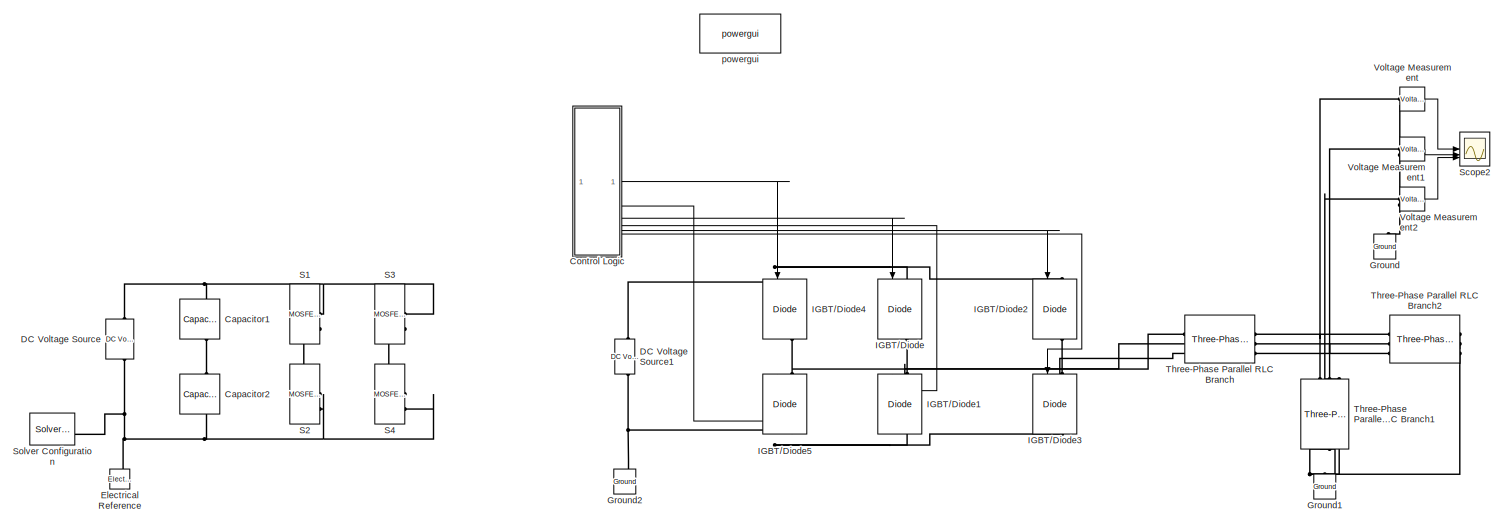
[diagram: root canvas - part 1/2, full width, top band]
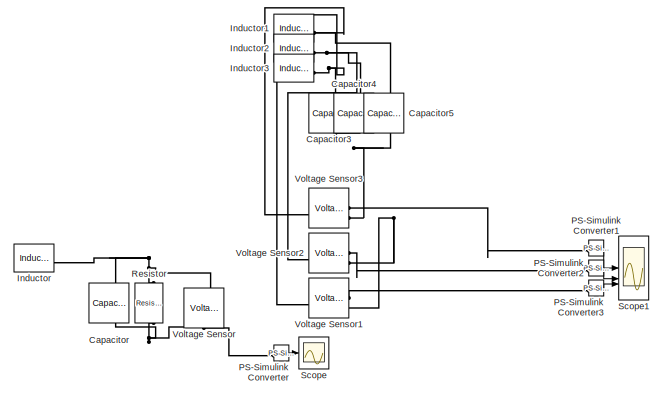
[diagram: root canvas - part 2/2, bottom center region]
MODEL slx_5fde8659187a
KIND model
CONFIG AbsTol = auto
CONFIG EnableMultiTasking = off
CONFIG FixedStep = 1e-7
CONFIG MaxStep = 1e-5
CONFIG MinStep = auto
CONFIG RelTol = 1e-3
CONFIG SampleTimeConstraint = Unconstrained
CONFIG SolverName = ode3
CONFIG StartTime = 0
CONFIG StopTime = 1
WORKSPACE source: mxarray member
WORKSPACE Amplitude = 0.9
WORKSPACE Tbase = 870
BLOCK [Reference] Capacitor  REF=fl_lib/Electrical/Electrical Elements/Capacitor
  Commented = on
  NameLocation = left
  SourceBlock = fl_lib/Electrical/Electrical Elements/Capacitor
  SourceType = Capacitor
BLOCK [Reference] Capacitor1  REF=ee_lib/Passive/Capacitor
  Commented = on
  NameLocation = left
  SourceBlock = ee_lib/Passive/Capacitor
  SourceType = Capacitor
BLOCK [Reference] Capacitor2  REF=ee_lib/Passive/Capacitor
  Commented = on
  NameLocation = left
  SourceBlock = ee_lib/Passive/Capacitor
  SourceType = Capacitor
BLOCK [Reference] Capacitor3  REF=fl_lib/Electrical/Electrical Elements/Capacitor
  Commented = on
  NameLocation = left
  SourceBlock = fl_lib/Electrical/Electrical Elements/Capacitor
  SourceType = Capacitor
BLOCK [Reference] Capacitor4  REF=fl_lib/Electrical/Electrical Elements/Capacitor
  Commented = on
  NameLocation = left
  SourceBlock = fl_lib/Electrical/Electrical Elements/Capacitor
  SourceType = Capacitor
BLOCK [Reference] Capacitor5  REF=fl_lib/Electrical/Electrical Elements/Capacitor
  Commented = on
  NameLocation = left
  SourceBlock = fl_lib/Electrical/Electrical Elements/Capacitor
  SourceType = Capacitor
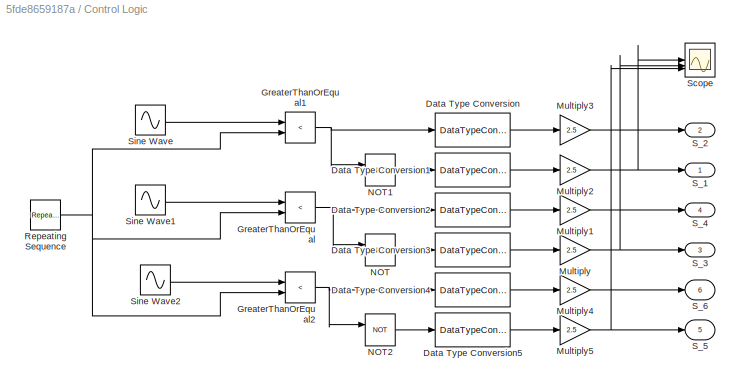
BLOCK [SubSystem] Control Logic
BLOCK [DataTypeConversion] Control Logic/Data Type Conversion
  OutDataTypeStr = double
  RndMeth = Floor
  SaturateOnIntegerOverflow = off
BLOCK [DataTypeConversion] Control Logic/Data Type Conversion1
  OutDataTypeStr = double
  RndMeth = Floor
  SaturateOnIntegerOverflow = off
BLOCK [DataTypeConversion] Control Logic/Data Type Conversion2
  OutDataTypeStr = double
  RndMeth = Floor
  SaturateOnIntegerOverflow = off
BLOCK [DataTypeConversion] Control Logic/Data Type Conversion3
  OutDataTypeStr = double
  RndMeth = Floor
  SaturateOnIntegerOverflow = off
BLOCK [DataTypeConversion] Control Logic/Data Type Conversion4
  OutDataTypeStr = double
  RndMeth = Floor
  SaturateOnIntegerOverflow = off
BLOCK [DataTypeConversion] Control Logic/Data Type Conversion5
  OutDataTypeStr = double
  RndMeth = Floor
  SaturateOnIntegerOverflow = off
BLOCK [RelationalOperator] Control Logic/GreaterThanOrEqual
  InputSameDT = off
  Operator = <
  OutDataTypeStr = boolean
  RndMeth = Simplest
BLOCK [RelationalOperator] Control Logic/GreaterThanOrEqual1
  InputSameDT = off
  Operator = <
  OutDataTypeStr = boolean
  RndMeth = Simplest
BLOCK [RelationalOperator] Control Logic/GreaterThanOrEqual2
  InputSameDT = off
  Operator = <
  OutDataTypeStr = boolean
  RndMeth = Simplest
BLOCK [Gain] Control Logic/Multiply
  Gain = 2.5
BLOCK [Gain] Control Logic/Multiply1
  Gain = 2.5
BLOCK [Gain] Control Logic/Multiply2
  Gain = 2.5
BLOCK [Gain] Control Logic/Multiply3
  Gain = 2.5
BLOCK [Gain] Control Logic/Multiply4
  Gain = 2.5
BLOCK [Gain] Control Logic/Multiply5
  Gain = 2.5
BLOCK [Logic] Control Logic/NOT
  AllPortsSameDT = off
  IconShape = distinctive
  Operator = NOT
  OutDataTypeStr = boolean
BLOCK [Logic] Control Logic/NOT1
  AllPortsSameDT = off
  IconShape = distinctive
  Operator = NOT
  OutDataTypeStr = boolean
BLOCK [Logic] Control Logic/NOT2
  AllPortsSameDT = off
  IconShape = distinctive
  Operator = NOT
  OutDataTypeStr = boolean
BLOCK [Reference] Control Logic/Repeating Sequence  REF=simulink/Sources/Repeating
Sequence
  SourceBlock = simulink/Sources/Repeating\nSequence
  SourceType = Repeating table
BLOCK [Outport] Control Logic/S_1
BLOCK [Outport] Control Logic/S_2
  Port = 2
BLOCK [Outport] Control Logic/S_3
  IconDisplay = Signal name
  Port = 3
BLOCK [Outport] Control Logic/S_4
  IconDisplay = Signal name
  Port = 4
BLOCK [Outport] Control Logic/S_5
  IconDisplay = Signal name
  Port = 5
BLOCK [Outport] Control Logic/S_6
  IconDisplay = Signal name
  Port = 6
BLOCK [Scope] Control Logic/Scope
  Floating = off
  NumInputPorts = 4
  ScopeSpecificationString = Simulink.scopes.TimeScopeBlockCfg('CurrentConfiguration', extmgr.ConfigurationSet(extmgr.Configuration('Core','General UI',true),extmgr.Configuration('Core','Source UI',true),extmgr.Configuration('Sources','WiredSimulink',true,'DataLoggingVariableName','ScopeData1'),extmgr.Configuration('Visuals','Time Domain',true,'SerializedDisplays',{struct('MinYLimReal','-0.3125','MaxYLimReal','2.56479','YLabe...<+3829ch>
BLOCK [Sin] Control Logic/Sine Wave
  Amplitude = Amplitude
  Frequency = 2*pi*60
  SampleTime = 0
BLOCK [Sin] Control Logic/Sine Wave1
  Amplitude = Amplitude
  Frequency = 2*pi*60
  Phase = 2*pi/3
  SampleTime = 0
BLOCK [Sin] Control Logic/Sine Wave2
  Amplitude = Amplitude
  Frequency = 2*pi*60
  Phase = 4*pi/3
  SampleTime = 0
BLOCK [Reference] DC Voltage Source  REF=fl_lib/Electrical/Electrical Sources/DC Voltage Source
  Commented = on
  NameLocation = right
  SourceBlock = fl_lib/Electrical/Electrical Sources/DC Voltage Source
  SourceType = DC Voltage Source
BLOCK [Reference] DC Voltage Source1  REF=spsDCVoltageSourceLib/DC Voltage Source
  LibrarySourceBlock = sps_lib/Sources/DC Voltage Source
  SourceBlock = spsDCVoltageSourceLib/DC Voltage Source
  SourceType = DC Voltage Source
BLOCK [Reference] Electrical Reference  REF=fl_lib/Electrical/Electrical Elements/Electrical Reference
  Commented = on
  NameLocation = right
  SourceBlock = fl_lib/Electrical/Electrical Elements/Electrical Reference
  SourceType = Electrical Reference
BLOCK [Reference] Ground  REF=spsGroundLib/Ground
  LibrarySourceBlock = sps_lib/Utilities/Ground
  NameLocation = right
  SourceBlock = spsGroundLib/Ground
  SourceType = Ground
BLOCK [Reference] Ground1  REF=spsGroundLib/Ground
  LibrarySourceBlock = sps_lib/Utilities/Ground
  NameLocation = right
  SourceBlock = spsGroundLib/Ground
  SourceType = Ground
BLOCK [Reference] Ground2  REF=spsGroundLib/Ground
  LibrarySourceBlock = sps_lib/Utilities/Ground
  NameLocation = right
  SourceBlock = spsGroundLib/Ground
  SourceType = Ground
BLOCK [Reference] IGBT//Diode  REF=spsIGBTDiodeLib/IGBT//Diode
  NameLocation = left
  SourceBlock = spsIGBTDiodeLib/IGBT//Diode
  SourceType = IGBT/Diode
BLOCK [Reference] IGBT//Diode1  REF=spsIGBTDiodeLib/IGBT//Diode
  NameLocation = left
  SourceBlock = spsIGBTDiodeLib/IGBT//Diode
  SourceType = IGBT/Diode
BLOCK [Reference] IGBT//Diode2  REF=spsIGBTDiodeLib/IGBT//Diode
  NameLocation = left
  SourceBlock = spsIGBTDiodeLib/IGBT//Diode
  SourceType = IGBT/Diode
BLOCK [Reference] IGBT//Diode3  REF=spsIGBTDiodeLib/IGBT//Diode
  NameLocation = left
  SourceBlock = spsIGBTDiodeLib/IGBT//Diode
  SourceType = IGBT/Diode
BLOCK [Reference] IGBT//Diode4  REF=spsIGBTDiodeLib/IGBT//Diode
  NameLocation = left
  SourceBlock = spsIGBTDiodeLib/IGBT//Diode
  SourceType = IGBT/Diode
BLOCK [Reference] IGBT//Diode5  REF=spsIGBTDiodeLib/IGBT//Diode
  NameLocation = left
  SourceBlock = spsIGBTDiodeLib/IGBT//Diode
  SourceType = IGBT/Diode
BLOCK [Reference] Inductor  REF=fl_lib/Electrical/Electrical Elements/Inductor
  Commented = on
  SourceBlock = fl_lib/Electrical/Electrical Elements/Inductor
  SourceType = Inductor
BLOCK [Reference] Inductor1  REF=fl_lib/Electrical/Electrical Elements/Inductor
  Commented = on
  SourceBlock = fl_lib/Electrical/Electrical Elements/Inductor
  SourceType = Inductor
BLOCK [Reference] Inductor2  REF=fl_lib/Electrical/Electrical Elements/Inductor
  Commented = on
  SourceBlock = fl_lib/Electrical/Electrical Elements/Inductor
  SourceType = Inductor
BLOCK [Reference] Inductor3  REF=fl_lib/Electrical/Electrical Elements/Inductor
  Commented = on
  SourceBlock = fl_lib/Electrical/Electrical Elements/Inductor
  SourceType = Inductor
BLOCK [Reference] PS-Simulink Converter  REF=nesl_utility/PS-Simulink
Converter
  Commented = on
  SourceBlock = nesl_utility/PS-Simulink\nConverter
  SourceType = PS-Simulink\nConverter
BLOCK [Reference] PS-Simulink Converter1  REF=nesl_utility/PS-Simulink
Converter
  Commented = on
  SourceBlock = nesl_utility/PS-Simulink\nConverter
  SourceType = PS-Simulink\nConverter
BLOCK [Reference] PS-Simulink Converter2  REF=nesl_utility/PS-Simulink
Converter
  Commented = on
  SourceBlock = nesl_utility/PS-Simulink\nConverter
  SourceType = PS-Simulink\nConverter
BLOCK [Reference] PS-Simulink Converter3  REF=nesl_utility/PS-Simulink
Converter
  Commented = on
  SourceBlock = nesl_utility/PS-Simulink\nConverter
  SourceType = PS-Simulink\nConverter
BLOCK [Reference] Resistor  REF=fl_lib/Electrical/Electrical Elements/Resistor
  Commented = on
  NameLocation = left
  SourceBlock = fl_lib/Electrical/Electrical Elements/Resistor
  SourceType = Resistor
BLOCK [Reference] S1  REF=ee_lib/Semiconductors &
Converters/MOSFET
(Ideal,
Switching)
  Commented = on
  SourceBlock = ee_lib/Semiconductors &\nConverters/MOSFET\n(Ideal,\nSwitching)
  SourceType = MOSFET\n(Ideal,\nSwitching)
BLOCK [Reference] S2  REF=ee_lib/Semiconductors &
Converters/MOSFET
(Ideal,
Switching)
  Commented = on
  SourceBlock = ee_lib/Semiconductors &\nConverters/MOSFET\n(Ideal,\nSwitching)
  SourceType = MOSFET\n(Ideal,\nSwitching)
BLOCK [Reference] S3  REF=ee_lib/Semiconductors &
Converters/MOSFET
(Ideal,
Switching)
  Commented = on
  SourceBlock = ee_lib/Semiconductors &\nConverters/MOSFET\n(Ideal,\nSwitching)
  SourceType = MOSFET\n(Ideal,\nSwitching)
BLOCK [Reference] S4  REF=ee_lib/Semiconductors &
Converters/MOSFET
(Ideal,
Switching)
  Commented = on
  SourceBlock = ee_lib/Semiconductors &\nConverters/MOSFET\n(Ideal,\nSwitching)
  SourceType = MOSFET\n(Ideal,\nSwitching)
BLOCK [Scope] Scope
  Commented = on
  Floating = off
  NumInputPorts = 1
  ScopeSpecificationString = Simulink.scopes.TimeScopeBlockCfg('CurrentConfiguration', extmgr.ConfigurationSet(extmgr.Configuration('Core','General UI',true),extmgr.Configuration('Core','Source UI',true),extmgr.Configuration('Sources','WiredSimulink',true),extmgr.Configuration('Visuals','Time Domain',true,'SerializedDisplays',{struct('MinYLimReal','-0.03392','MaxYLimReal','0.03393','YLabelReal','','MinYLimMag','0.00000','MaxY...<+1477ch>
BLOCK [Scope] Scope1
  Commented = on
  Floating = off
  NumInputPorts = 3
  ScopeSpecificationString = Simulink.scopes.TimeScopeBlockCfg('CurrentConfiguration', extmgr.ConfigurationSet(extmgr.Configuration('Core','General UI',true),extmgr.Configuration('Core','Source UI',true),extmgr.Configuration('Sources','WiredSimulink',true,'DataLoggingVariableName','ScopeData2'),extmgr.Configuration('Visuals','Time Domain',true,'SerializedDisplays',{struct('MinYLimReal','-0.39409','MaxYLimReal','0.38595','YLab...<+1592ch>
BLOCK [Scope] Scope2
  Floating = off
  NumInputPorts = 3
  ScopeSpecificationString = Simulink.scopes.TimeScopeBlockCfg('CurrentConfiguration', extmgr.ConfigurationSet(extmgr.Configuration('Core','General UI',true),extmgr.Configuration('Core','Source UI',true),extmgr.Configuration('Sources','WiredSimulink',true,'DataLoggingVariableName','ScopeData1'),extmgr.Configuration('Visuals','Time Domain',true,'SerializedDisplays',{struct('MinYLimReal','-20.83099','MaxYLimReal','116.87787','Y...<+3219ch>
BLOCK [Reference] Solver Configuration  REF=nesl_utility/Solver
Configuration
  Commented = on
  SourceBlock = nesl_utility/Solver\nConfiguration
  SourceType = Solver\nConfiguration
BLOCK [Reference] Three-Phase Parallel RLC Branch  REF=spsThreePhaseParallelRLCBranchLib/Three-Phase
Parallel RLC Branch
  AttributesFormatString = \n
  LibrarySourceBlock = sps_lib/Passives/Three-Phase\nParallel RLC Branch
  SourceBlock = spsThreePhaseParallelRLCBranchLib/Three-Phase\nParallel RLC Branch
  SourceType = Three-Phase Parallel RLC Branch
BLOCK [Reference] Three-Phase Parallel RLC Branch1  REF=spsThreePhaseParallelRLCBranchLib/Three-Phase
Parallel RLC Branch
  AttributesFormatString = \n
  LibrarySourceBlock = sps_lib/Passives/Three-Phase\nParallel RLC Branch
  NameLocation = left
  SourceBlock = spsThreePhaseParallelRLCBranchLib/Three-Phase\nParallel RLC Branch
  SourceType = Three-Phase Parallel RLC Branch
BLOCK [Reference] Three-Phase Parallel RLC Branch2  REF=spsThreePhaseParallelRLCBranchLib/Three-Phase
Parallel RLC Branch
  AttributesFormatString = \n
  LibrarySourceBlock = sps_lib/Passives/Three-Phase\nParallel RLC Branch
  SourceBlock = spsThreePhaseParallelRLCBranchLib/Three-Phase\nParallel RLC Branch
  SourceType = Three-Phase Parallel RLC Branch
BLOCK [Reference] Voltage Measurement  REF=spsVoltageMeasurementLib/Voltage Measurement
  LibrarySourceBlock = sps_lib/Sensors and Measurements/Voltage Measurement
  SourceBlock = spsVoltageMeasurementLib/Voltage Measurement
  SourceType = Voltage Measurement
  UserDataPersistent = on
BLOCK [Reference] Voltage Measurement1  REF=spsVoltageMeasurementLib/Voltage Measurement
  LibrarySourceBlock = sps_lib/Sensors and Measurements/Voltage Measurement
  SourceBlock = spsVoltageMeasurementLib/Voltage Measurement
  SourceType = Voltage Measurement
  UserDataPersistent = on
BLOCK [Reference] Voltage Measurement2  REF=spsVoltageMeasurementLib/Voltage Measurement
  LibrarySourceBlock = sps_lib/Sensors and Measurements/Voltage Measurement
  SourceBlock = spsVoltageMeasurementLib/Voltage Measurement
  SourceType = Voltage Measurement
  UserDataPersistent = on
BLOCK [Reference] Voltage Sensor  REF=fl_lib/Electrical/Electrical Sensors/Voltage Sensor
  Commented = on
  NameLocation = right
  SourceBlock = fl_lib/Electrical/Electrical Sensors/Voltage Sensor
  SourceType = Voltage Sensor
BLOCK [Reference] Voltage Sensor1  REF=fl_lib/Electrical/Electrical Sensors/Voltage Sensor
  Commented = on
  NameLocation = top
  SourceBlock = fl_lib/Electrical/Electrical Sensors/Voltage Sensor
  SourceType = Voltage Sensor
BLOCK [Reference] Voltage Sensor2  REF=fl_lib/Electrical/Electrical Sensors/Voltage Sensor
  Commented = on
  NameLocation = top
  SourceBlock = fl_lib/Electrical/Electrical Sensors/Voltage Sensor
  SourceType = Voltage Sensor
BLOCK [Reference] Voltage Sensor3  REF=fl_lib/Electrical/Electrical Sensors/Voltage Sensor
  Commented = on
  NameLocation = top
  SourceBlock = fl_lib/Electrical/Electrical Sensors/Voltage Sensor
  SourceType = Voltage Sensor
BLOCK [Reference] powergui  REF=sps_lib/powergui
  LibrarySourceBlock = sps_lib/powergui
  Priority = 1
  SourceBlock = sps_lib/powergui
  SourceType = PSB option menu block
LINE Control Logic/Data Type Conversion1:1 -> Control Logic/Multiply2:1
LINE Control Logic/Data Type Conversion2:1 -> Control Logic/Multiply1:1
LINE Control Logic/Data Type Conversion3:1 -> Control Logic/Multiply:1
LINE Control Logic/Data Type Conversion4:1 -> Control Logic/Multiply4:1
LINE Control Logic/Data Type Conversion5:1 -> Control Logic/Multiply5:1
LINE Control Logic/Data Type Conversion:1 -> Control Logic/Multiply3:1
NET Control Logic/GreaterThanOrEqual1:1 -> Control Logic/Data Type Conversion:1, Control Logic/NOT1:1
NET Control Logic/GreaterThanOrEqual2:1 -> Control Logic/Data Type Conversion4:1, Control Logic/NOT2:1
NET Control Logic/GreaterThanOrEqual:1 -> Control Logic/Data Type Conversion2:1, Control Logic/NOT:1
LINE Control Logic/Multiply1:1 -> Control Logic/S_4:1
NET Control Logic/Multiply2:1 -> Control Logic/S_1:1, Control Logic/Scope:1
LINE Control Logic/Multiply3:1 -> Control Logic/S_2:1
LINE Control Logic/Multiply4:1 -> Control Logic/S_6:1
NET Control Logic/Multiply5:1 -> Control Logic/S_5:1, Control Logic/Scope:3
NET Control Logic/Multiply:1 -> Control Logic/S_3:1, Control Logic/Scope:2
LINE Control Logic/NOT1:1 -> Control Logic/Data Type Conversion1:1
LINE Control Logic/NOT2:1 -> Control Logic/Data Type Conversion5:1
LINE Control Logic/NOT:1 -> Control Logic/Data Type Conversion3:1
NET Control Logic/Repeating Sequence:1 -> Control Logic/GreaterThanOrEqual1:2, Control Logic/GreaterThanOrEqual2:2, Control Logic/GreaterThanOrEqual:2
LINE Control Logic/Sine Wave1:1 -> Control Logic/GreaterThanOrEqual:1
LINE Control Logic/Sine Wave2:1 -> Control Logic/GreaterThanOrEqual2:1
LINE Control Logic/Sine Wave:1 -> Control Logic/GreaterThanOrEqual1:1
LINE Control Logic:1 -> IGBT//Diode4:1
LINE Control Logic:2 -> IGBT//Diode5:1
LINE Control Logic:3 -> IGBT//Diode:1
LINE Control Logic:4 -> IGBT//Diode1:1
LINE Control Logic:5 -> IGBT//Diode2:1
LINE Control Logic:6 -> IGBT//Diode3:1
LINE PS-Simulink Converter1:1 -> Scope1:1
LINE PS-Simulink Converter2:1 -> Scope1:2
LINE PS-Simulink Converter3:1 -> Scope1:3
LINE PS-Simulink Converter:1 -> Scope:1
LINE Voltage Measurement1:1 -> Scope2:2
LINE Voltage Measurement2:1 -> Scope2:3
LINE Voltage Measurement:1 -> Scope2:1
PNET net1: Capacitor1:LConn1 -- DC Voltage Source:LConn1 -- S1:RConn1 -- S3:RConn1
PLINE Capacitor1:RConn1 -- Capacitor2:LConn1
PNET net2: Capacitor2:RConn1 -- DC Voltage Source:RConn1 -- Electrical Reference:LConn1 -- S2:RConn2 -- S4:RConn2 -- Solver Configuration:RConn1
PNET net3: Capacitor3:LConn1 -- Inductor3:RConn1 -- Voltage Sensor1:LConn1
PNET net4: Capacitor3:RConn1 -- Capacitor4:RConn1 -- Capacitor5:RConn1 -- Voltage Sensor1:RConn2 -- Voltage Sensor2:RConn2 -- Voltage Sensor3:RConn2
PNET net5: Capacitor4:LConn1 -- Inductor2:RConn1 -- Voltage Sensor2:LConn1
PNET net6: Capacitor5:LConn1 -- Inductor1:RConn1 -- Voltage Sensor3:LConn1
PNET net7: Capacitor:LConn1 -- Inductor:RConn1 -- Resistor:LConn1 -- Voltage Sensor:LConn1
PNET net8: Capacitor:RConn1 -- Resistor:RConn1 -- Voltage Sensor:RConn2
PNET net9: DC Voltage Source1:LConn1 -- Ground2:LConn1 -- IGBT//Diode1:RConn1 -- IGBT//Diode3:RConn1 -- IGBT//Diode5:RConn1
PNET net10: DC Voltage Source1:RConn1 -- IGBT//Diode2:LConn1 -- IGBT//Diode4:LConn1 -- IGBT//Diode:LConn1
PNET net11: Ground1:LConn1 -- Three-Phase Parallel RLC Branch1:RConn1 -- Three-Phase Parallel RLC Branch1:RConn2 -- Three-Phase Parallel RLC Branch1:RConn3 -- Three-Phase Parallel RLC Branch2:RConn1 -- Three-Phase Parallel RLC Branch2:RConn2 -- Three-Phase Parallel RLC Branch2:RConn3
PNET net12: Ground:LConn1 -- Voltage Measurement1:LConn2 -- Voltage Measurement2:LConn2 -- Voltage Measurement:LConn2
PNET net13: IGBT//Diode1:LConn1 -- IGBT//Diode:RConn1 -- Three-Phase Parallel RLC Branch:LConn2
PNET net14: IGBT//Diode2:RConn1 -- IGBT//Diode3:LConn1 -- Three-Phase Parallel RLC Branch:LConn3
PNET net15: IGBT//Diode4:RConn1 -- IGBT//Diode5:LConn1 -- Three-Phase Parallel RLC Branch:LConn1
PLINE PS-Simulink Converter1:LConn1 -- Voltage Sensor3:RConn1
PLINE PS-Simulink Converter2:LConn1 -- Voltage Sensor2:RConn1
PLINE PS-Simulink Converter3:LConn1 -- Voltage Sensor1:RConn1
PLINE PS-Simulink Converter:LConn1 -- Voltage Sensor:RConn1
PLINE S1:RConn2 -- S2:RConn1
PLINE S3:RConn2 -- S4:RConn1
PNET net16: Three-Phase Parallel RLC Branch1:LConn1 -- Three-Phase Parallel RLC Branch2:LConn1 -- Three-Phase Parallel RLC Branch:RConn1 -- Voltage Measurement:LConn1
PNET net17: Three-Phase Parallel RLC Branch1:LConn2 -- Three-Phase Parallel RLC Branch2:LConn2 -- Three-Phase Parallel RLC Branch:RConn2 -- Voltage Measurement1:LConn1
PNET net18: Three-Phase Parallel RLC Branch1:LConn3 -- Three-Phase Parallel RLC Branch2:LConn3 -- Three-Phase Parallel RLC Branch:RConn3 -- Voltage Measurement2:LConn1
note: NET lines group one-source signal fan-out (src -> all destinations, sorted); 1:1 wires keep LINE; PNET lines group multi-terminal physical nets as a canonical sorted terminal list (undirected conserving connections); 2-terminal nets keep the pairwise PLINE form
